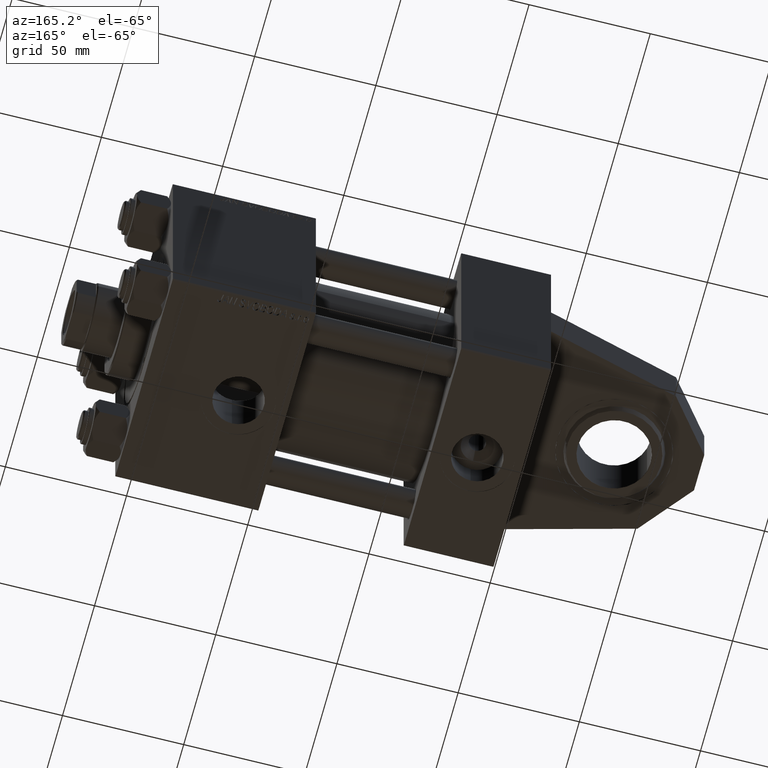
[diagram: clean part render]
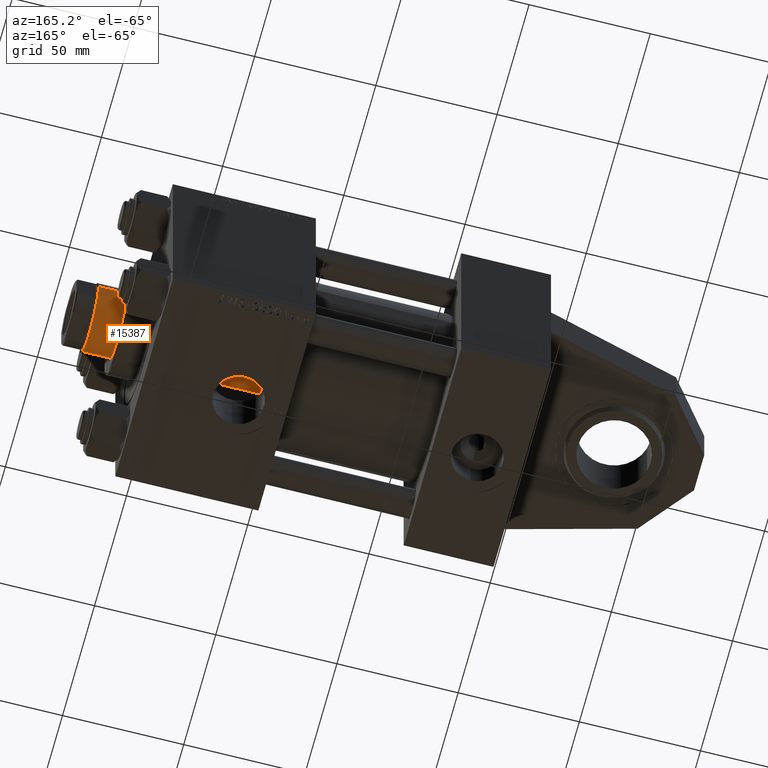
[diagram: same view with one face highlighted and labeled with its STEP entity id]
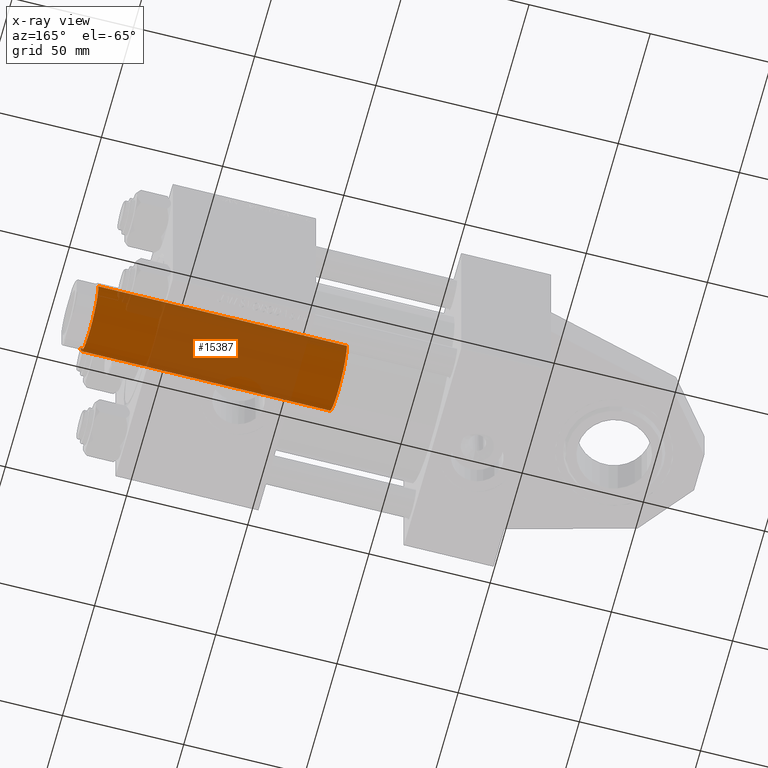
[diagram: x-ray of the same camera — body ghosted, the highlighted face saturated]
A machine part, auxiliary view. The second image highlights one B-rep face of the part: STEP entity #15387.
The next image is the same camera in x-ray: the body ghosted, the highlighted face saturated — about 61% of this face is hidden behind the body in this view.
In plain terms, the highlighted cylindrical surface (edge-blend (fillet) strip) has radius 14 mm, axis along (-1, 0, 0).
Its self-contained STEP definition (entity closure, byte-faithful):
#386 = EDGE_CURVE ( 'NONE', #24458, #50463, #23666, .T. ) ;
#2498 = EDGE_LOOP ( 'NONE', ( #22280, #25235, #5323, #41471 ) ) ;
#2999 = FACE_OUTER_BOUND ( 'NONE', #2498, .T. ) ;
#4026 = DIRECTION ( 'NONE',  ( -1.000000000000000000, 0.000000000000000000, 0.000000000000000000 ) ) ;
#4590 = EDGE_CURVE ( 'NONE', #18974, #28088, #12376, .T. ) ;
#5323 = ORIENTED_EDGE ( 'NONE', *, *, #38307, .T. ) ;
#6323 = CARTESIAN_POINT ( 'NONE',  ( -14.00000000000000178, 0.000000000000000000, 141.5000000000000000 ) ) ;
#8684 = CARTESIAN_POINT ( 'NONE',  ( -14.00000000000000178, 0.000000000000000000, 142.0000000000000000 ) ) ;
#10416 = CARTESIAN_POINT ( 'NONE',  ( 14.00000000000000178, 1.714505518806294835E-15, 141.5000000000000000 ) ) ;
#10774 = AXIS2_PLACEMENT_3D ( 'NONE', #26046, #17657, #18688 ) ;
#12376 = LINE ( 'NONE', #8684, #26861 ) ;
#15387 = ADVANCED_FACE ( 'NONE', ( #2999 ), #32114, .T. ) ;
#17657 = DIRECTION ( 'NONE',  ( 0.000000000000000000, 0.000000000000000000, 1.000000000000000000 ) ) ;
#18688 = DIRECTION ( 'NONE',  ( 1.000000000000000000, 0.000000000000000000, 0.000000000000000000 ) ) ;
#18974 = VERTEX_POINT ( 'NONE', #6323 ) ;
#22280 = ORIENTED_EDGE ( 'NONE', *, *, #28487, .T. ) ;
#23666 = LINE ( 'NONE', #38627, #39261 ) ;
#24458 = VERTEX_POINT ( 'NONE', #10416 ) ;
#24574 = AXIS2_PLACEMENT_3D ( 'NONE', #48111, #35799, #4026 ) ;
#25235 = ORIENTED_EDGE ( 'NONE', *, *, #386, .T. ) ;
#26046 = CARTESIAN_POINT ( 'NONE',  ( 0.000000000000000000, 0.000000000000000000, 39.00000000000000000 ) ) ;
#26861 = VECTOR ( 'NONE', #48845, 1000.000000000000000 ) ;
#27322 = AXIS2_PLACEMENT_3D ( 'NONE', #34801, #30089, #30344 ) ;
#28088 = VERTEX_POINT ( 'NONE', #34086 ) ;
#28487 = EDGE_CURVE ( 'NONE', #18974, #24458, #34880, .T. ) ;
#30089 = DIRECTION ( 'NONE',  ( 0.000000000000000000, 0.000000000000000000, -1.000000000000000000 ) ) ;
#30344 = DIRECTION ( 'NONE',  ( 1.000000000000000000, 0.000000000000000000, 0.000000000000000000 ) ) ;
#32114 = CYLINDRICAL_SURFACE ( 'NONE', #24574, 14.00000000000000178 ) ;
#33412 = CIRCLE ( 'NONE', #10774, 14.00000000000000178 ) ;
#34086 = CARTESIAN_POINT ( 'NONE',  ( -14.00000000000000178, 0.000000000000000000, 39.00000000000000000 ) ) ;
#34801 = CARTESIAN_POINT ( 'NONE',  ( 0.000000000000000000, 0.000000000000000000, 141.5000000000000000 ) ) ;
#34880 = CIRCLE ( 'NONE', #27322, 14.00000000000000178 ) ;
#35736 = DIRECTION ( 'NONE',  ( -0.000000000000000000, -0.000000000000000000, -1.000000000000000000 ) ) ;
#35799 = DIRECTION ( 'NONE',  ( -0.000000000000000000, -0.000000000000000000, -1.000000000000000000 ) ) ;
#38307 = EDGE_CURVE ( 'NONE', #50463, #28088, #33412, .T. ) ;
#38627 = CARTESIAN_POINT ( 'NONE',  ( 14.00000000000000178, 1.714505518806294835E-15, 142.0000000000000000 ) ) ;
#39261 = VECTOR ( 'NONE', #35736, 1000.000000000000000 ) ;
#39735 = CARTESIAN_POINT ( 'NONE',  ( 14.00000000000000178, 1.714505518806294835E-15, 39.00000000000000000 ) ) ;
#41471 = ORIENTED_EDGE ( 'NONE', *, *, #4590, .F. ) ;
#48111 = CARTESIAN_POINT ( 'NONE',  ( 0.000000000000000000, 0.000000000000000000, 142.0000000000000000 ) ) ;
#48845 = DIRECTION ( 'NONE',  ( -0.000000000000000000, -0.000000000000000000, -1.000000000000000000 ) ) ;
#50463 = VERTEX_POINT ( 'NONE', #39735 ) ;